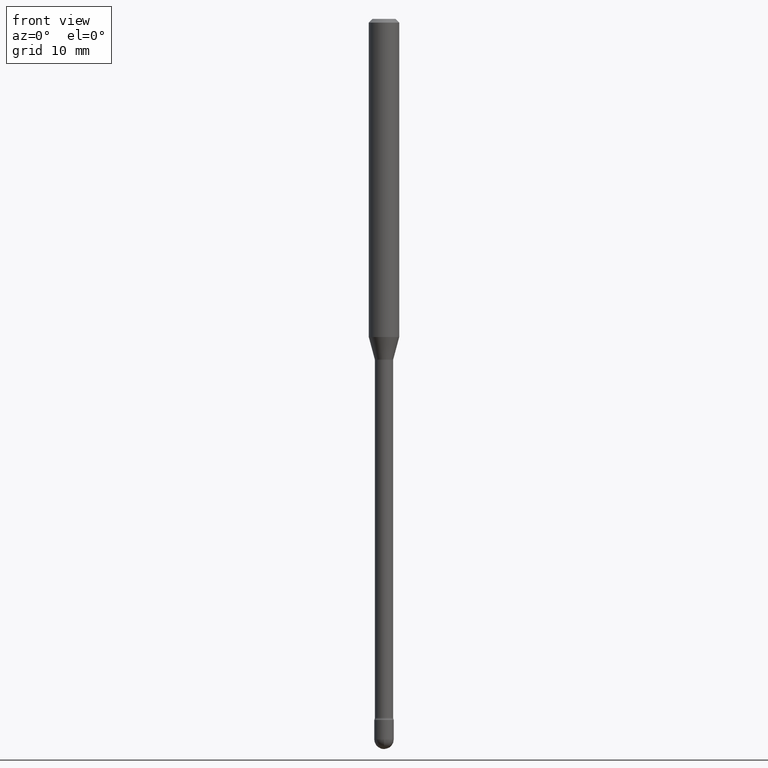
[diagram: clean part render]
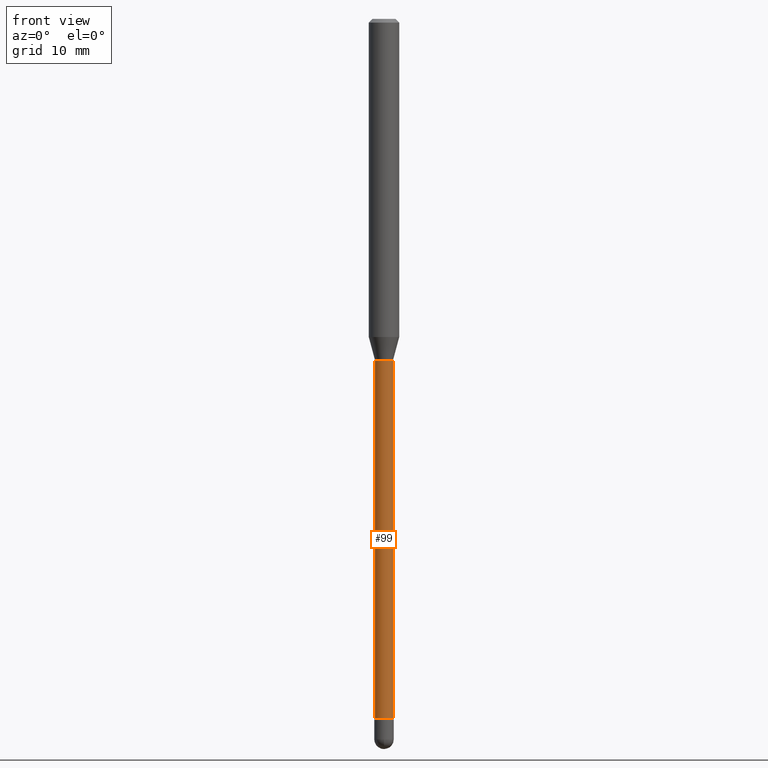
[diagram: same view with one face highlighted and labeled with its STEP entity id]
A machine part, front view. The second image highlights one B-rep face of the part: STEP entity #99.
In plain terms, the highlighted cylindrical surface (edge-blend (fillet) strip) has radius 0.955 mm, axis along (-0, 0, 1).
Its self-contained STEP definition (entity closure, byte-faithful):
#8 = VECTOR ( 'NONE', #85, 39.37007874015748143 ) ;
#36 = VERTEX_POINT ( 'NONE', #202 ) ;
#64 = EDGE_CURVE ( 'NONE', #36, #270, #317, .T. ) ;
#73 = DIRECTION ( 'NONE',  ( 1.000000000000000000, -6.982962677686247778E-15, 0.000000000000000000 ) ) ;
#85 = DIRECTION ( 'NONE',  ( -2.445468806185136877E-29, 3.491481338843145188E-15, 1.000000000000000000 ) ) ;
#92 = AXIS2_PLACEMENT_3D ( 'NONE', #469, #194, #552 ) ;
#99 = ADVANCED_FACE ( 'NONE', ( #206 ), #123, .T. ) ;
#123 = CYLINDRICAL_SURFACE ( 'NONE', #92, 0.03760000000000003617 ) ;
#128 = EDGE_CURVE ( 'NONE', #144, #348, #226, .T. ) ;
#135 = LINE ( 'NONE', #564, #8 ) ;
#144 = VERTEX_POINT ( 'NONE', #561 ) ;
#161 = EDGE_CURVE ( 'NONE', #144, #36, #256, .T. ) ;
#194 = DIRECTION ( 'NONE',  ( -2.445468806185136597E-29, 3.491481338843145583E-15, 1.000000000000000000 ) ) ;
#202 = CARTESIAN_POINT ( 'NONE',  ( -0.03759999999999999454, -7.193845236125598810E-15, -1.401974787463811101 ) ) ;
#203 = EDGE_CURVE ( 'NONE', #348, #270, #135, .T. ) ;
#206 = FACE_OUTER_BOUND ( 'NONE', #432, .T. ) ;
#221 = ORIENTED_EDGE ( 'NONE', *, *, #203, .T. ) ;
#226 = CIRCLE ( 'NONE', #408, 0.03760000000000007087 ) ;
#243 = DIRECTION ( 'NONE',  ( -2.445468806185136597E-29, 3.491481338843145583E-15, 1.000000000000000000 ) ) ;
#256 = LINE ( 'NONE', #431, #274 ) ;
#270 = VERTEX_POINT ( 'NONE', #328 ) ;
#274 = VECTOR ( 'NONE', #565, 39.37007874015748143 ) ;
#317 = CIRCLE ( 'NONE', #396, 0.03759999999999999454 ) ;
#322 = DIRECTION ( 'NONE',  ( -2.445468806185136597E-29, 3.491481338843145583E-15, 1.000000000000000000 ) ) ;
#328 = CARTESIAN_POINT ( 'NONE',  ( 0.03759999999999999454, -5.157528204639485379E-15, -1.401974787463811101 ) ) ;
#348 = VERTEX_POINT ( 'NONE', #515 ) ;
#361 = ORIENTED_EDGE ( 'NONE', *, *, #161, .F. ) ;
#395 = ORIENTED_EDGE ( 'NONE', *, *, #128, .T. ) ;
#396 = AXIS2_PLACEMENT_3D ( 'NONE', #543, #243, #454 ) ;
#408 = AXIS2_PLACEMENT_3D ( 'NONE', #550, #322, #73 ) ;
#431 = CARTESIAN_POINT ( 'NONE',  ( -0.03760000000000003617, 2.671640686457996032E-16, 4.780733988912442390E-16 ) ) ;
#432 = EDGE_LOOP ( 'NONE', ( #361, #395, #221, #546 ) ) ;
#454 = DIRECTION ( 'NONE',  ( 1.000000000000000000, -6.982962677686261977E-15, 0.000000000000000000 ) ) ;
#469 = CARTESIAN_POINT ( 'NONE',  ( -1.169113584055446105E-44, 1.669184350826100908E-30, 4.780733988912460139E-16 ) ) ;
#515 = CARTESIAN_POINT ( 'NONE',  ( 0.03760000000000007087, -1.028960919826531589E-14, -2.871861204020250469 ) ) ;
#543 = CARTESIAN_POINT ( 'NONE',  ( 3.428485609800787057E-29, -4.894968807958481776E-15, -1.401974787463811101 ) ) ;
#546 = ORIENTED_EDGE ( 'NONE', *, *, #64, .F. ) ;
#550 = CARTESIAN_POINT ( 'NONE',  ( 7.023046990124811063E-29, -1.002704980158431387E-14, -2.871861204020250469 ) ) ;
#552 = DIRECTION ( 'NONE',  ( 1.000000000000000000, -6.982962677686267499E-15, 4.839830652673565037E-29 ) ) ;
#561 = CARTESIAN_POINT ( 'NONE',  ( -0.03760000000000007087, -9.765567447251369097E-15, -2.871861204020250469 ) ) ;
#564 = CARTESIAN_POINT ( 'NONE',  ( 0.03760000000000003617, -2.625593966810022226E-16, 4.780733988912478875E-16 ) ) ;
#565 = DIRECTION ( 'NONE',  ( -2.445468806185136877E-29, 3.491481338843145188E-15, 1.000000000000000000 ) ) ;